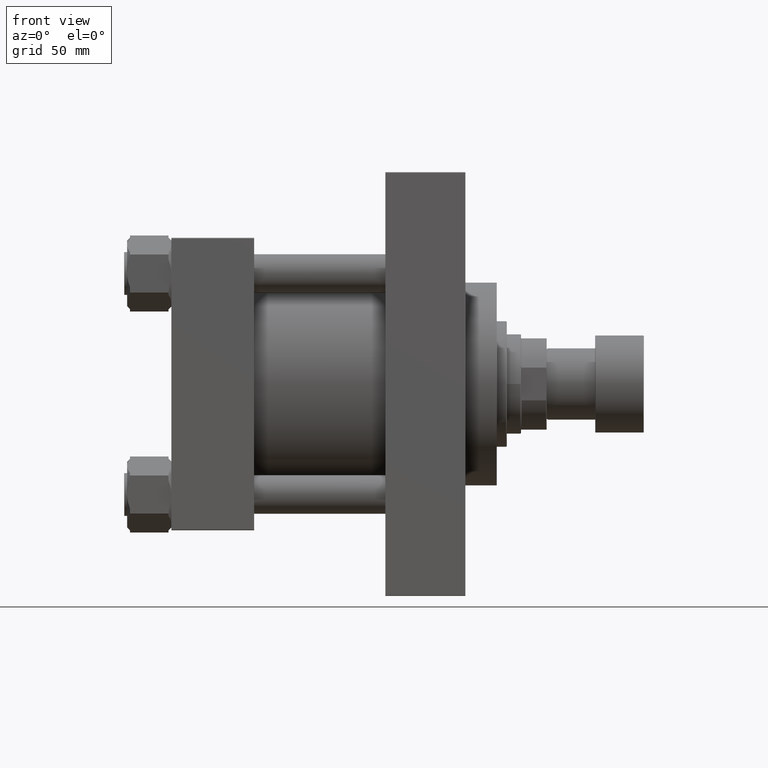
[diagram: clean part render]
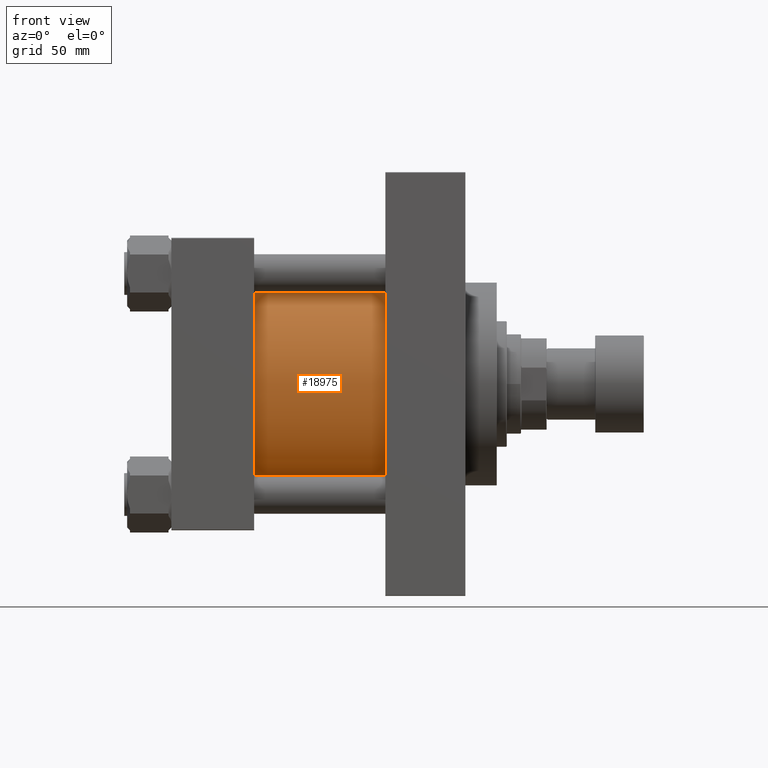
[diagram: same view with one face highlighted and labeled with its STEP entity id]
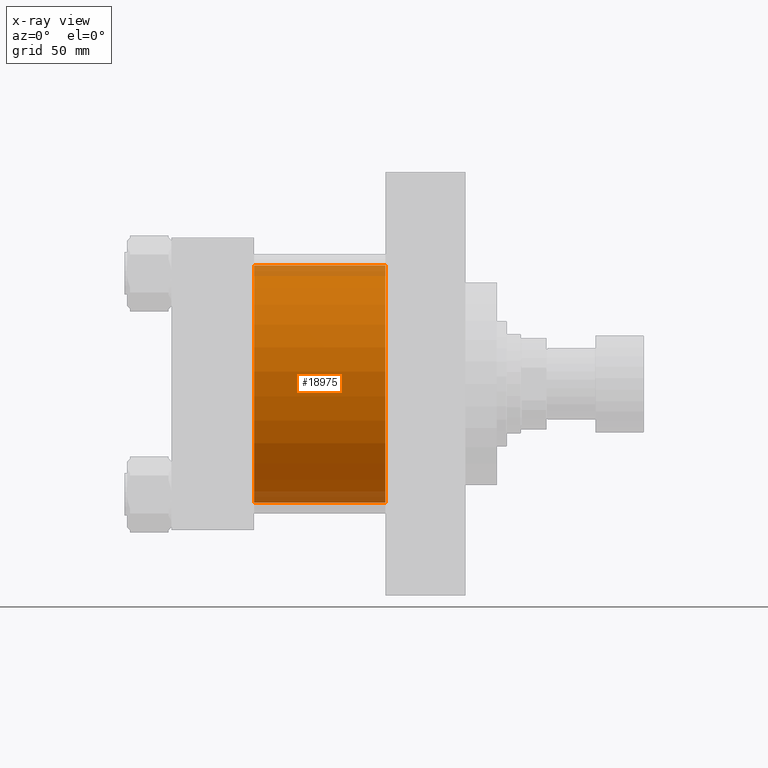
[diagram: x-ray of the same camera — body ghosted, the highlighted face saturated]
A machine part, front view. The second image highlights one B-rep face of the part: STEP entity #18975.
The next image is the same camera in x-ray: the body ghosted, the highlighted face saturated — about 9% of this face is hidden behind the body in this view.
In plain terms, the highlighted cylindrical surface (partial cylindrical patch) has radius 83 mm, axis along (-1, -0, -0).
Its self-contained STEP definition (entity closure, byte-faithful):
#1377 = VERTEX_POINT ( 'NONE', #47129 ) ;
#2332 = VECTOR ( 'NONE', #26070, 1000.000000000000000 ) ;
#3095 = ORIENTED_EDGE ( 'NONE', *, *, #36750, .T. ) ;
#3913 = LINE ( 'NONE', #11213, #2332 ) ;
#6483 = EDGE_LOOP ( 'NONE', ( #14194, #26691, #3095, #9561 ) ) ;
#6632 = EDGE_CURVE ( 'NONE', #1377, #9033, #9926, .T. ) ;
#8350 = DIRECTION ( 'NONE',  ( -1.000000000000000000, -0.000000000000000000, -0.000000000000000000 ) ) ;
#8766 = DIRECTION ( 'NONE',  ( 1.000000000000000000, 0.000000000000000000, 0.000000000000000000 ) ) ;
#9033 = VERTEX_POINT ( 'NONE', #33268 ) ;
#9561 = ORIENTED_EDGE ( 'NONE', *, *, #6632, .T. ) ;
#9926 = CIRCLE ( 'NONE', #21605, 83.00000000000000000 ) ;
#10284 = VECTOR ( 'NONE', #8350, 1000.000000000000000 ) ;
#11213 = CARTESIAN_POINT ( 'NONE',  ( 150.0000000000000000, 7.562483218957820855E-15, -83.00000000000000000 ) ) ;
#11989 = CARTESIAN_POINT ( 'NONE',  ( 150.0000000000000000, -2.602085213965210642E-15, 83.00000000000000000 ) ) ;
#14194 = ORIENTED_EDGE ( 'NONE', *, *, #28519, .F. ) ;
#14410 = CYLINDRICAL_SURFACE ( 'NONE', #23917, 83.00000000000000000 ) ;
#17596 = DIRECTION ( 'NONE',  ( -1.000000000000000000, -0.000000000000000000, -0.000000000000000000 ) ) ;
#18975 = ADVANCED_FACE ( 'NONE', ( #21981 ), #14410, .T. ) ;
#21605 = AXIS2_PLACEMENT_3D ( 'NONE', #30134, #26485, #22845 ) ;
#21981 = FACE_OUTER_BOUND ( 'NONE', #6483, .T. ) ;
#22845 = DIRECTION ( 'NONE',  ( 0.000000000000000000, 0.000000000000000000, 1.000000000000000000 ) ) ;
#23210 = LINE ( 'NONE', #11989, #10284 ) ;
#23917 = AXIS2_PLACEMENT_3D ( 'NONE', #37287, #17596, #32928 ) ;
#25566 = CARTESIAN_POINT ( 'NONE',  ( 150.0000000000000000, -2.602085213965210642E-15, 83.00000000000000000 ) ) ;
#26070 = DIRECTION ( 'NONE',  ( -1.000000000000000000, -0.000000000000000000, -0.000000000000000000 ) ) ;
#26485 = DIRECTION ( 'NONE',  ( 1.000000000000000000, -0.000000000000000000, 0.000000000000000000 ) ) ;
#26691 = ORIENTED_EDGE ( 'NONE', *, *, #38255, .F. ) ;
#27727 = VERTEX_POINT ( 'NONE', #44307 ) ;
#28519 = EDGE_CURVE ( 'NONE', #27727, #9033, #3913, .T. ) ;
#29738 = CIRCLE ( 'NONE', #36744, 83.00000000000000000 ) ;
#30134 = CARTESIAN_POINT ( 'NONE',  ( 57.99999999999999289, -2.602085213965210642E-15, 0.000000000000000000 ) ) ;
#30915 = CARTESIAN_POINT ( 'NONE',  ( 150.0000000000000000, -2.602085213965210642E-15, 0.000000000000000000 ) ) ;
#32928 = DIRECTION ( 'NONE',  ( 0.000000000000000000, 0.000000000000000000, 1.000000000000000000 ) ) ;
#33268 = CARTESIAN_POINT ( 'NONE',  ( 57.99999999999999289, 7.562483218957820855E-15, -83.00000000000000000 ) ) ;
#34562 = DIRECTION ( 'NONE',  ( 0.000000000000000000, 0.000000000000000000, -1.000000000000000000 ) ) ;
#36744 = AXIS2_PLACEMENT_3D ( 'NONE', #30915, #8766, #34562 ) ;
#36750 = EDGE_CURVE ( 'NONE', #48057, #1377, #23210, .T. ) ;
#37287 = CARTESIAN_POINT ( 'NONE',  ( 150.0000000000000000, -2.602085213965210642E-15, 0.000000000000000000 ) ) ;
#38255 = EDGE_CURVE ( 'NONE', #48057, #27727, #29738, .T. ) ;
#44307 = CARTESIAN_POINT ( 'NONE',  ( 150.0000000000000000, 7.562483218957820855E-15, -83.00000000000000000 ) ) ;
#47129 = CARTESIAN_POINT ( 'NONE',  ( 57.99999999999999289, -2.602085213965210642E-15, 83.00000000000000000 ) ) ;
#48057 = VERTEX_POINT ( 'NONE', #25566 ) ;